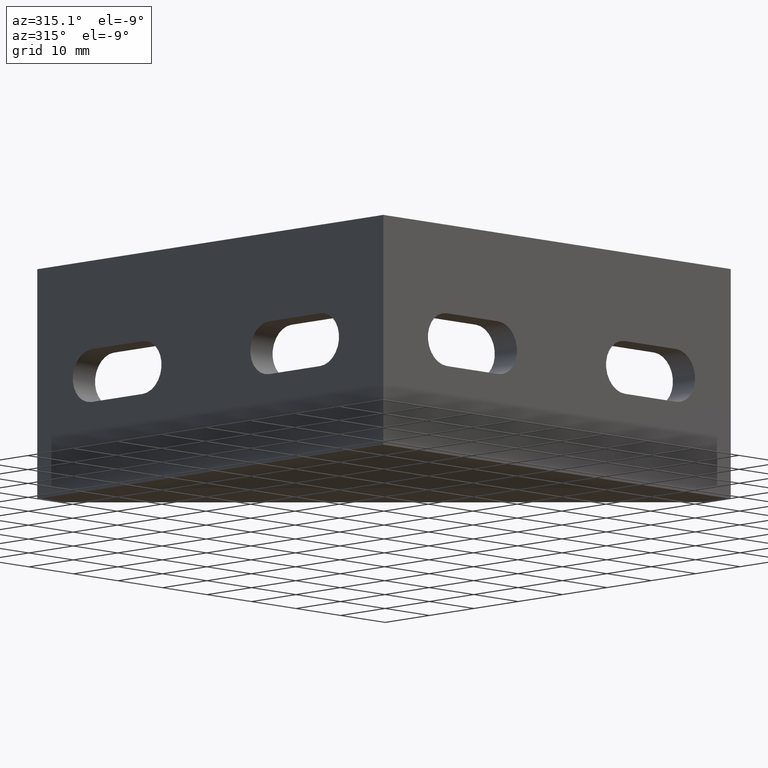
[diagram: clean part render]
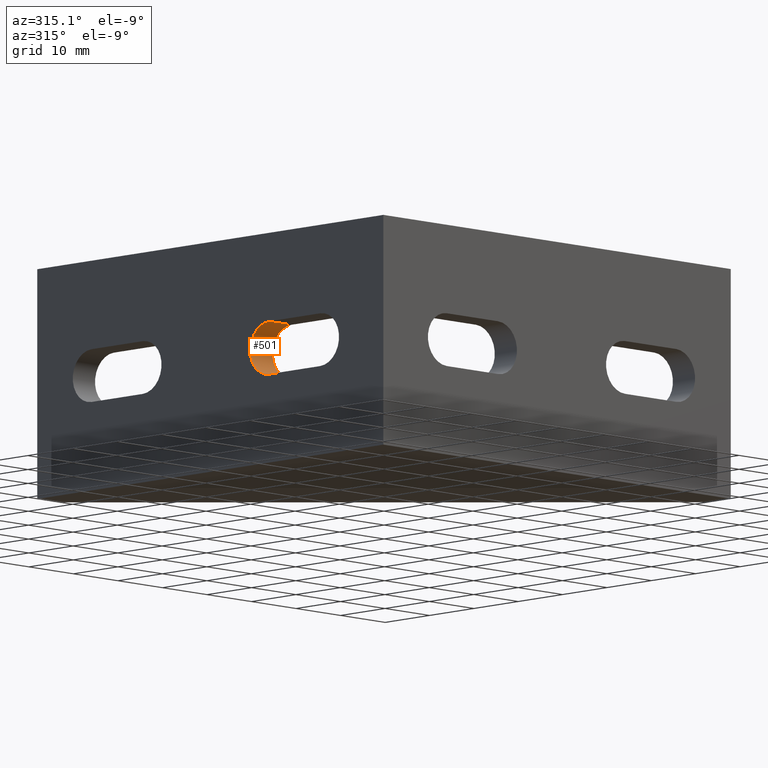
[diagram: same view with one face highlighted and labeled with its STEP entity id]
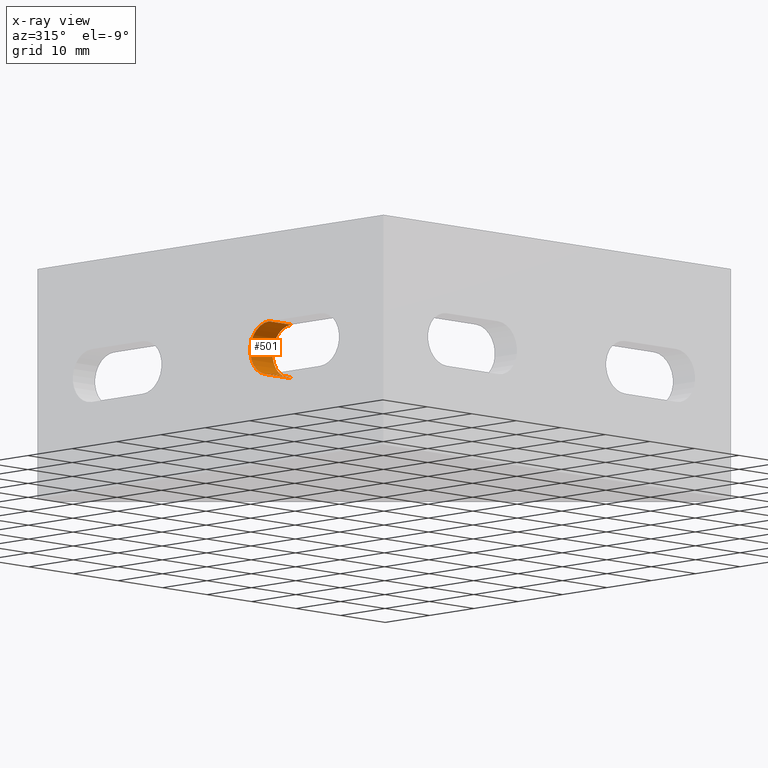
[diagram: x-ray of the same camera — body ghosted, the highlighted face saturated]
A machine part, auxiliary view. The second image highlights one B-rep face of the part: STEP entity #501.
The next image is the same camera in x-ray: the body ghosted, the highlighted face saturated — about 0% of this face is hidden behind the body in this view.
In plain terms, the highlighted cylindrical surface (edge-blend (fillet) strip) has radius 4.25 mm, axis along (1, 0, 0).
Its self-contained STEP definition (entity closure, byte-faithful):
#53=FACE_OUTER_BOUND('',#79,.T.);
#79=EDGE_LOOP('',(#389,#390,#391,#392));
#125=LINE('',#795,#179);
#126=LINE('',#798,#180);
#179=VECTOR('',#655,10.);
#180=VECTOR('',#658,10.);
#221=CIRCLE('',#560,4.25);
#222=CIRCLE('',#561,4.25);
#249=VERTEX_POINT('',#791);
#250=VERTEX_POINT('',#792);
#251=VERTEX_POINT('',#794);
#252=VERTEX_POINT('',#796);
#307=EDGE_CURVE('',#249,#250,#221,.T.);
#308=EDGE_CURVE('',#251,#249,#125,.T.);
#309=EDGE_CURVE('',#252,#251,#222,.T.);
#310=EDGE_CURVE('',#252,#250,#126,.T.);
#389=ORIENTED_EDGE('',*,*,#307,.F.);
#390=ORIENTED_EDGE('',*,*,#308,.F.);
#391=ORIENTED_EDGE('',*,*,#309,.F.);
#392=ORIENTED_EDGE('',*,*,#310,.T.);
#487=CYLINDRICAL_SURFACE('',#559,4.25);
#501=ADVANCED_FACE('',(#53),#487,.F.);
#559=AXIS2_PLACEMENT_3D('',#790,#651,#652);
#560=AXIS2_PLACEMENT_3D('',#793,#653,#654);
#561=AXIS2_PLACEMENT_3D('',#797,#656,#657);
#651=DIRECTION('center_axis',(1.,0.,0.));
#652=DIRECTION('ref_axis',(0.,0.,1.));
#653=DIRECTION('center_axis',(-1.,0.,0.));
#654=DIRECTION('ref_axis',(0.,0.,1.));
#655=DIRECTION('',(1.,0.,0.));
#656=DIRECTION('center_axis',(1.,0.,0.));
#657=DIRECTION('ref_axis',(0.,0.,1.));
#658=DIRECTION('',(1.,0.,0.));
#790=CARTESIAN_POINT('Origin',(0.,25.75,4.44089209850063E-15));
#791=CARTESIAN_POINT('',(5.,25.75,4.25000000000001));
#792=CARTESIAN_POINT('',(5.,25.75,-4.24999999999999));
#793=CARTESIAN_POINT('Origin',(5.,25.75,4.44089209850063E-15));
#794=CARTESIAN_POINT('',(0.,25.75,4.25000000000001));
#795=CARTESIAN_POINT('',(0.,25.75,4.25000000000001));
#796=CARTESIAN_POINT('',(0.,25.75,-4.24999999999999));
#797=CARTESIAN_POINT('Origin',(0.,25.75,4.44089209850063E-15));
#798=CARTESIAN_POINT('',(0.,25.75,-4.24999999999999));